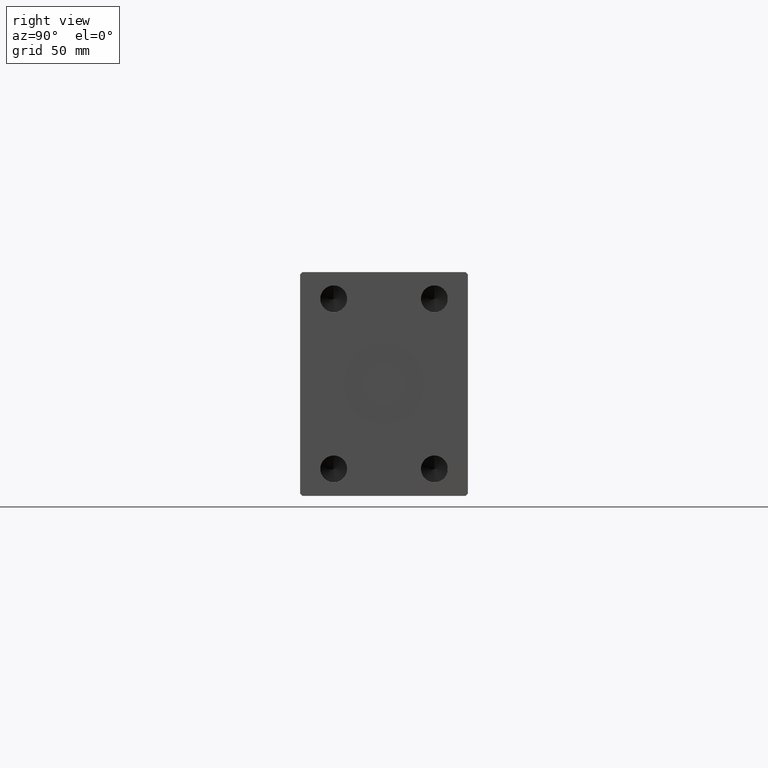
[diagram: clean part render]
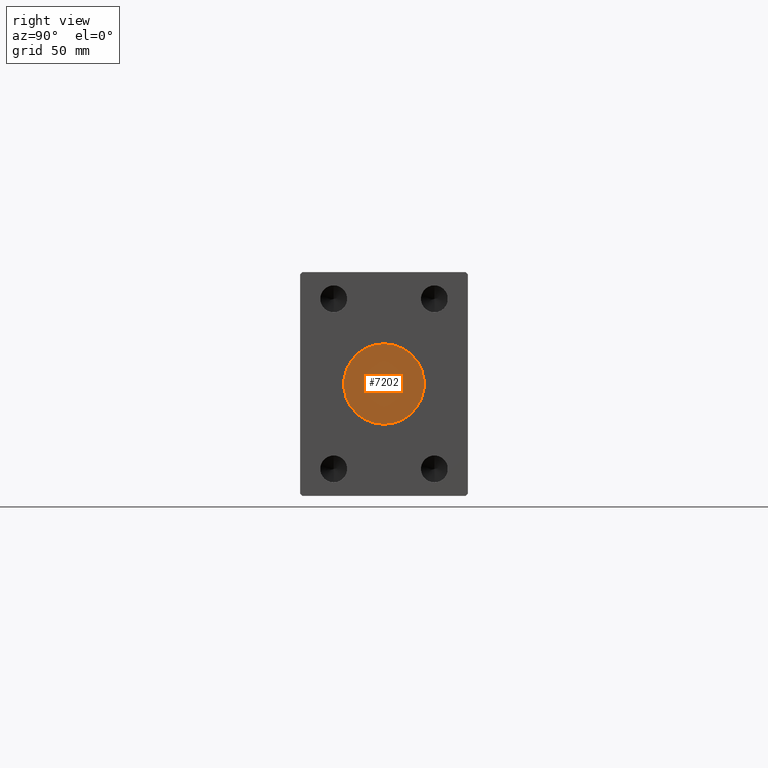
[diagram: same view with one face highlighted and labeled with its STEP entity id]
A machine part, right view. The second image highlights one B-rep face of the part: STEP entity #7202.
In plain terms, the highlighted planar face has unit normal (1, 0, 0).
Its self-contained STEP definition (entity closure, byte-faithful):
#209 = DIRECTION ( 'NONE',  ( 1.000000000000000000, 0.000000000000000000, 0.000000000000000000 ) ) ;
#344 = CARTESIAN_POINT ( 'NONE',  ( 261.8000000000000114, 0.000000000000000000, 0.000000000000000000 ) ) ;
#3421 = AXIS2_PLACEMENT_3D ( 'NONE', #32182, #8127, #18481 ) ;
#5205 = EDGE_CURVE ( 'NONE', #30811, #25056, #39316, .T. ) ;
#6500 = DIRECTION ( 'NONE',  ( 0.000000000000000000, 0.000000000000000000, -1.000000000000000000 ) ) ;
#7202 = ADVANCED_FACE ( 'NONE', ( #38948 ), #35547, .T. ) ;
#7293 = CARTESIAN_POINT ( 'NONE',  ( 261.8000000000000114, 0.000000000000000000, -18.00000000000000000 ) ) ;
#8127 = DIRECTION ( 'NONE',  ( 1.000000000000000000, 0.000000000000000000, 0.000000000000000000 ) ) ;
#11433 = ORIENTED_EDGE ( 'NONE', *, *, #22326, .T. ) ;
#14499 = AXIS2_PLACEMENT_3D ( 'NONE', #34599, #209, #6500 ) ;
#15597 = AXIS2_PLACEMENT_3D ( 'NONE', #344, #30915, #28222 ) ;
#18481 = DIRECTION ( 'NONE',  ( 0.000000000000000000, 0.000000000000000000, -1.000000000000000000 ) ) ;
#22326 = EDGE_CURVE ( 'NONE', #25056, #30811, #22402, .T. ) ;
#22402 = CIRCLE ( 'NONE', #14499, 18.00000000000000000 ) ;
#25056 = VERTEX_POINT ( 'NONE', #7293 ) ;
#26141 = EDGE_LOOP ( 'NONE', ( #11433, #37094 ) ) ;
#28222 = DIRECTION ( 'NONE',  ( 0.000000000000000000, 0.000000000000000000, -1.000000000000000000 ) ) ;
#30811 = VERTEX_POINT ( 'NONE', #30905 ) ;
#30905 = CARTESIAN_POINT ( 'NONE',  ( 261.8000000000000114, 2.204364238465235428E-15, 18.00000000000000000 ) ) ;
#30915 = DIRECTION ( 'NONE',  ( 1.000000000000000000, 0.000000000000000000, 0.000000000000000000 ) ) ;
#32182 = CARTESIAN_POINT ( 'NONE',  ( 261.8000000000000114, 0.000000000000000000, 0.000000000000000000 ) ) ;
#34599 = CARTESIAN_POINT ( 'NONE',  ( 261.8000000000000114, 0.000000000000000000, 0.000000000000000000 ) ) ;
#35547 = PLANE ( 'NONE',  #3421 ) ;
#37094 = ORIENTED_EDGE ( 'NONE', *, *, #5205, .T. ) ;
#38948 = FACE_OUTER_BOUND ( 'NONE', #26141, .T. ) ;
#39316 = CIRCLE ( 'NONE', #15597, 18.00000000000000000 ) ;